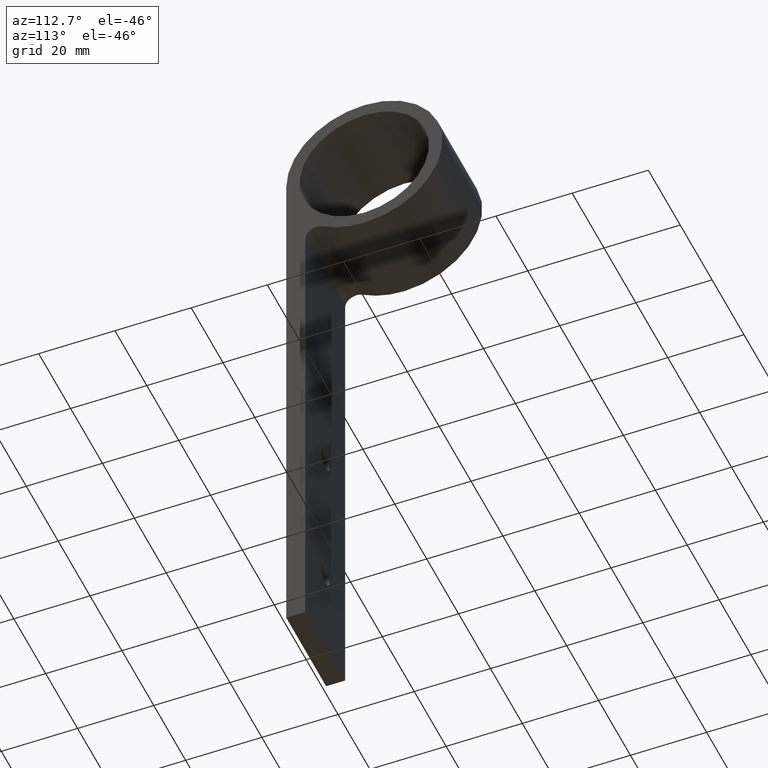
[diagram: clean part render]
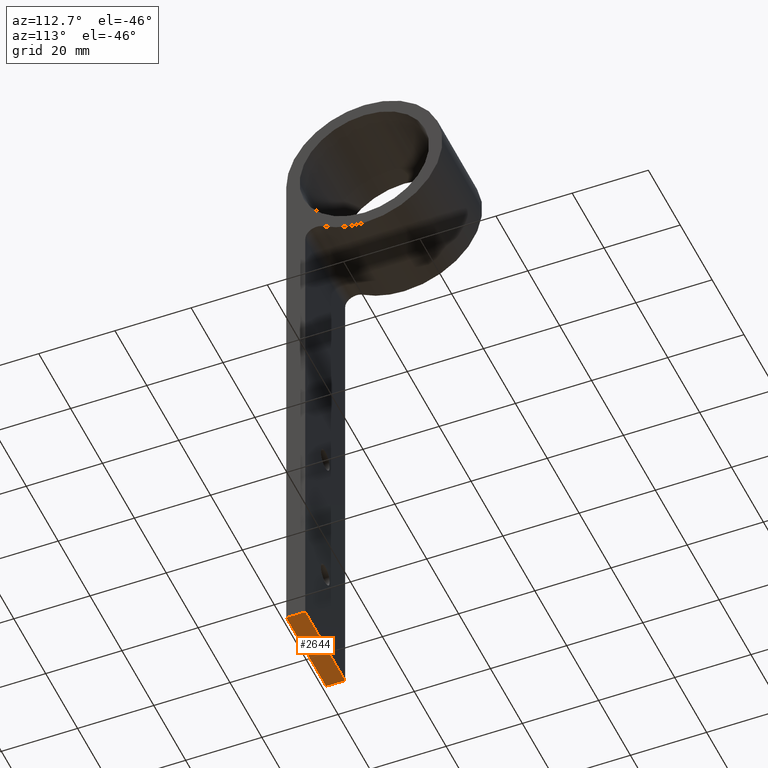
[diagram: same view with one face highlighted and labeled with its STEP entity id]
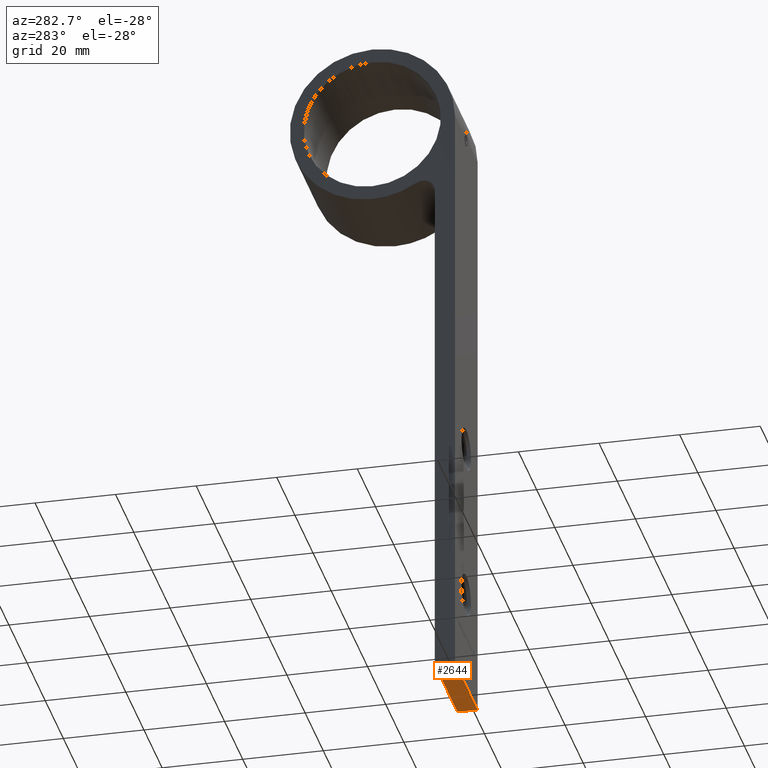
[diagram: same view with one face highlighted and labeled with its STEP entity id]
A machine part, auxiliary view. The second image highlights one B-rep face of the part: STEP entity #2644.
A second angle (auxiliary view) of the same face is appended — the face is thin or edge-on in the first view.
In plain terms, the highlighted planar face has unit normal (0, 0, 1).
Its self-contained STEP definition (entity closure, byte-faithful):
#289 = DIRECTION ( 'NONE',  ( 1.000000000000000000, 0.0000000000000000000, 0.0000000000000000000 ) ) ;
#856 = EDGE_CURVE ( 'NONE', #7938, #3028, #9150, .T. ) ;
#1102 = CARTESIAN_POINT ( 'NONE',  ( -12.50000000000000000, 0.0000000000000000000, -150.0000000000000000 ) ) ;
#1158 = FACE_OUTER_BOUND ( 'NONE', #4687, .T. ) ;
#1412 = VECTOR ( 'NONE', #8811, 1000.000000000000000 ) ;
#2241 = PLANE ( 'NONE',  #7520 ) ;
#2278 = LINE ( 'NONE', #12449, #6625 ) ;
#2307 = DIRECTION ( 'NONE',  ( -1.000000000000000000, -0.0000000000000000000, -0.0000000000000000000 ) ) ;
#2644 = ADVANCED_FACE ( 'NONE', ( #1158 ), #2241, .F. ) ;
#2905 = VERTEX_POINT ( 'NONE', #7870 ) ;
#3028 = VERTEX_POINT ( 'NONE', #11123 ) ;
#3706 = EDGE_CURVE ( 'NONE', #6029, #3028, #5021, .T. ) ;
#4310 = DIRECTION ( 'NONE',  ( -0.0000000000000000000, 1.000000000000000000, -0.0000000000000000000 ) ) ;
#4687 = EDGE_LOOP ( 'NONE', ( #11896, #11874, #12371, #12389 ) ) ;
#4986 = CARTESIAN_POINT ( 'NONE',  ( 12.50000000000000000, 5.000000000000000000, -150.0000000000000000 ) ) ;
#5021 = LINE ( 'NONE', #11683, #11427 ) ;
#5675 = DIRECTION ( 'NONE',  ( -0.0000000000000000000, 1.000000000000000000, -0.0000000000000000000 ) ) ;
#6029 = VERTEX_POINT ( 'NONE', #1102 ) ;
#6052 = CARTESIAN_POINT ( 'NONE',  ( 12.50000000000000000, 5.000000000000000000, -150.0000000000000000 ) ) ;
#6364 = EDGE_CURVE ( 'NONE', #2905, #6029, #8162, .T. ) ;
#6625 = VECTOR ( 'NONE', #4310, 1000.000000000000000 ) ;
#7223 = DIRECTION ( 'NONE',  ( -0.0000000000000000000, 0.0000000000000000000, 1.000000000000000000 ) ) ;
#7520 = AXIS2_PLACEMENT_3D ( 'NONE', #12263, #7223, #289 ) ;
#7870 = CARTESIAN_POINT ( 'NONE',  ( 12.50000000000000000, 0.0000000000000000000, -150.0000000000000000 ) ) ;
#7938 = VERTEX_POINT ( 'NONE', #4986 ) ;
#8162 = LINE ( 'NONE', #9778, #1412 ) ;
#8811 = DIRECTION ( 'NONE',  ( -1.000000000000000000, -0.0000000000000000000, -0.0000000000000000000 ) ) ;
#9150 = LINE ( 'NONE', #6052, #9318 ) ;
#9318 = VECTOR ( 'NONE', #2307, 1000.000000000000000 ) ;
#9778 = CARTESIAN_POINT ( 'NONE',  ( 12.50000000000000000, 0.0000000000000000000, -150.0000000000000000 ) ) ;
#11123 = CARTESIAN_POINT ( 'NONE',  ( -12.50000000000000000, 5.000000000000000000, -150.0000000000000000 ) ) ;
#11427 = VECTOR ( 'NONE', #5675, 1000.000000000000000 ) ;
#11683 = CARTESIAN_POINT ( 'NONE',  ( -12.50000000000000000, 5.000000000000000000, -150.0000000000000000 ) ) ;
#11874 = ORIENTED_EDGE ( 'NONE', *, *, #856, .F. ) ;
#11896 = ORIENTED_EDGE ( 'NONE', *, *, #3706, .T. ) ;
#12091 = EDGE_CURVE ( 'NONE', #2905, #7938, #2278, .T. ) ;
#12263 = CARTESIAN_POINT ( 'NONE',  ( 12.50000000000000000, 5.000000000000000000, -150.0000000000000000 ) ) ;
#12371 = ORIENTED_EDGE ( 'NONE', *, *, #12091, .F. ) ;
#12389 = ORIENTED_EDGE ( 'NONE', *, *, #6364, .T. ) ;
#12449 = CARTESIAN_POINT ( 'NONE',  ( 12.50000000000000000, 5.000000000000000000, -150.0000000000000000 ) ) ;